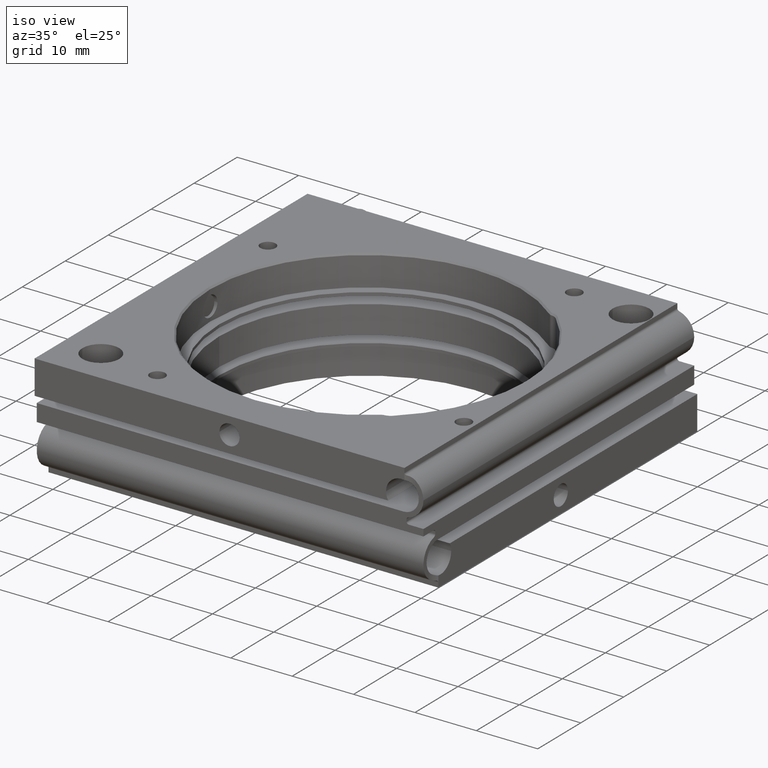
[diagram: clean part render]
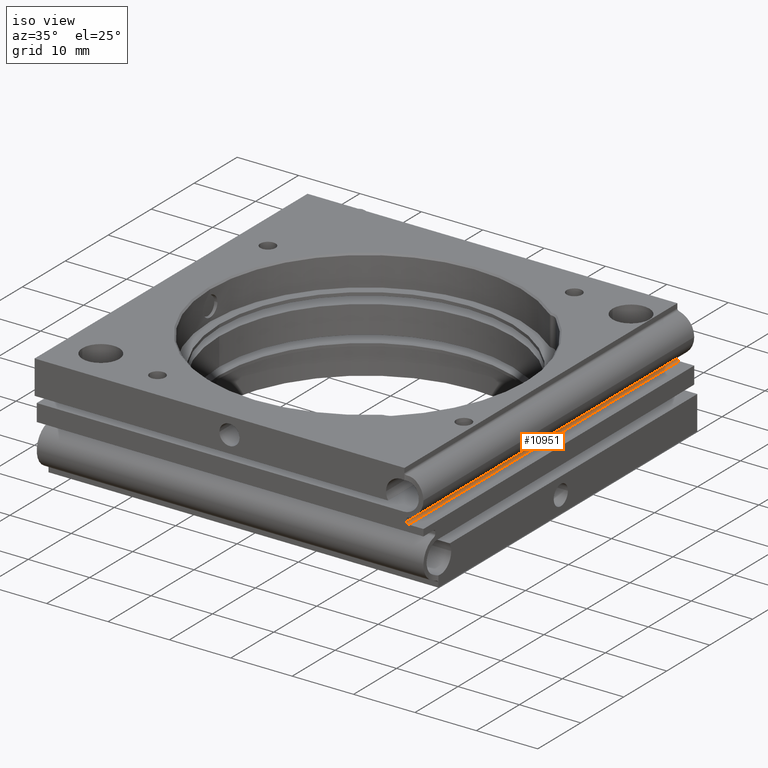
[diagram: same view with one face highlighted and labeled with its STEP entity id]
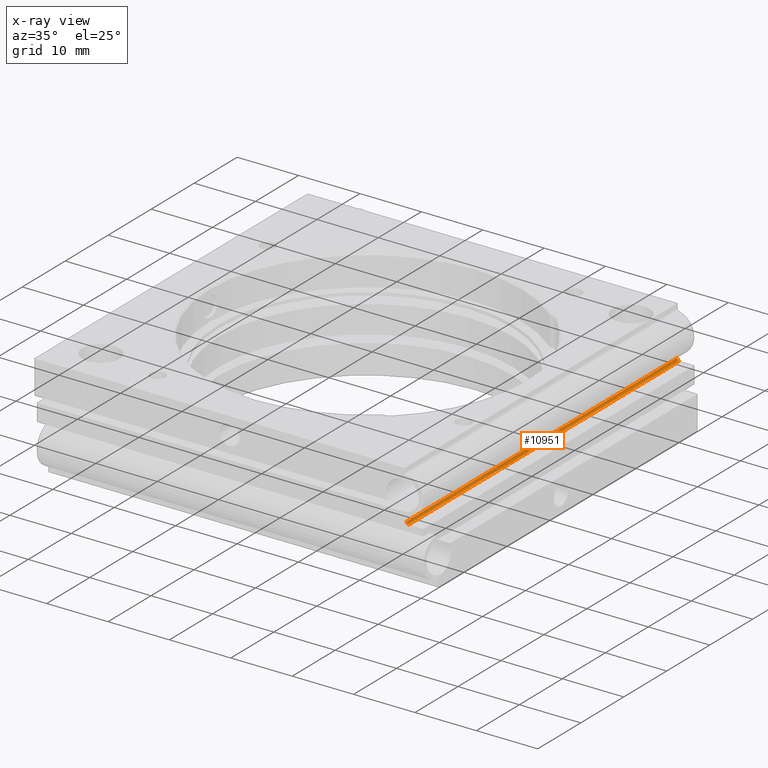
[diagram: x-ray of the same camera — body ghosted, the highlighted face saturated]
A machine part, iso view. The second image highlights one B-rep face of the part: STEP entity #10951.
The next image is the same camera in x-ray: the body ghosted, the highlighted face saturated — about 0% of this face is hidden behind the body in this view.
In plain terms, the highlighted cylindrical surface (edge-blend (fillet) strip) has radius 0.35 mm, axis along (-0, 1, -0).
Its self-contained STEP definition (entity closure, byte-faithful):
#315 = EDGE_CURVE ( 'NONE', #7467, #4102, #625, .T. ) ;
#625 = LINE ( 'NONE', #8996, #5203 ) ;
#847 = DIRECTION ( 'NONE',  ( 1.000000000000000000, 0.000000000000000000, -6.829619984160658046E-17 ) ) ;
#1054 = CARTESIAN_POINT ( 'NONE',  ( 31.24999999999998579, 0.5499999999999980460, -28.85000000000001918 ) ) ;
#1796 = CARTESIAN_POINT ( 'NONE',  ( -31.75000000000000000, 0.5499999999999980460, -28.85000000000001563 ) ) ;
#1996 = CARTESIAN_POINT ( 'NONE',  ( 31.75000000000000000, 0.5499999999999980460, -28.85000000000001918 ) ) ;
#2056 = LINE ( 'NONE', #1996, #6169 ) ;
#2078 = EDGE_CURVE ( 'NONE', #4102, #9222, #3993, .T. ) ;
#2232 = DIRECTION ( 'NONE',  ( 0.000000000000000000, 0.000000000000000000, 1.000000000000000000 ) ) ;
#3919 = CARTESIAN_POINT ( 'NONE',  ( -31.75000000000000000, 0.8999999999999980238, -28.50000000000001421 ) ) ;
#3993 = CIRCLE ( 'NONE', #11520, 0.3499999999999996447 ) ;
#4102 = VERTEX_POINT ( 'NONE', #3919 ) ;
#4452 = AXIS2_PLACEMENT_3D ( 'NONE', #13164, #6897, #7982 ) ;
#5203 = VECTOR ( 'NONE', #11077, 1000.000000000000000 ) ;
#5710 = DIRECTION ( 'NONE',  ( 1.000000000000000000, 0.000000000000000000, -1.092739197465705287E-16 ) ) ;
#6169 = VECTOR ( 'NONE', #847, 1000.000000000000000 ) ;
#6897 = DIRECTION ( 'NONE',  ( 1.000000000000000000, -1.334402673828313339E-16, -0.000000000000000000 ) ) ;
#7315 = CARTESIAN_POINT ( 'NONE',  ( -31.75000000000000000, 0.8999999999999980238, -28.85000000000001563 ) ) ;
#7467 = VERTEX_POINT ( 'NONE', #12207 ) ;
#7596 = CARTESIAN_POINT ( 'NONE',  ( -31.75000000000000000, 0.8999999999999980238, -28.85000000000001563 ) ) ;
#7850 = EDGE_CURVE ( 'NONE', #9222, #12808, #2056, .T. ) ;
#7982 = DIRECTION ( 'NONE',  ( 0.000000000000000000, -1.000000000000000000, 0.000000000000000000 ) ) ;
#8996 = CARTESIAN_POINT ( 'NONE',  ( -31.75000000000000000, 0.8999999999999980238, -28.50000000000001421 ) ) ;
#9222 = VERTEX_POINT ( 'NONE', #1796 ) ;
#9830 = ORIENTED_EDGE ( 'NONE', *, *, #7850, .F. ) ;
#10272 = DIRECTION ( 'NONE',  ( -1.000000000000000000, 0.000000000000000000, 6.829619984160658046E-17 ) ) ;
#10468 = ORIENTED_EDGE ( 'NONE', *, *, #2078, .F. ) ;
#10951 = ADVANCED_FACE ( 'NONE', ( #11282 ), #11478, .F. ) ;
#11077 = DIRECTION ( 'NONE',  ( -1.000000000000000000, 0.000000000000000000, 6.829619984160658046E-17 ) ) ;
#11133 = AXIS2_PLACEMENT_3D ( 'NONE', #7315, #10272, #2232 ) ;
#11282 = FACE_OUTER_BOUND ( 'NONE', #13110, .T. ) ;
#11288 = EDGE_CURVE ( 'NONE', #7467, #12808, #11562, .T. ) ;
#11478 = CYLINDRICAL_SURFACE ( 'NONE', #11133, 0.3499999999999996447 ) ;
#11520 = AXIS2_PLACEMENT_3D ( 'NONE', #7596, #5710, #12777 ) ;
#11562 = CIRCLE ( 'NONE', #4452, 0.3500000000000000333 ) ;
#12075 = ORIENTED_EDGE ( 'NONE', *, *, #11288, .T. ) ;
#12207 = CARTESIAN_POINT ( 'NONE',  ( 31.24999999999998579, 0.8999999999999980238, -28.50000000000001776 ) ) ;
#12777 = DIRECTION ( 'NONE',  ( 0.000000000000000000, 0.000000000000000000, -1.000000000000000000 ) ) ;
#12808 = VERTEX_POINT ( 'NONE', #1054 ) ;
#13051 = ORIENTED_EDGE ( 'NONE', *, *, #315, .F. ) ;
#13110 = EDGE_LOOP ( 'NONE', ( #13051, #12075, #9830, #10468 ) ) ;
#13164 = CARTESIAN_POINT ( 'NONE',  ( 31.24999999999998579, 0.8999999999999980238, -28.85000000000001918 ) ) ;